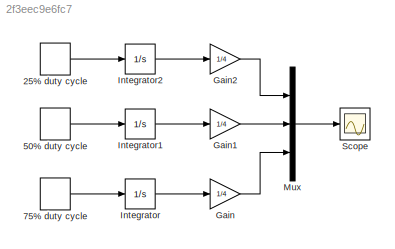
MODEL slx_2f3eec9e6fc7
KIND model
CONFIG AbsTol = auto
CONFIG EnableMultiTasking = off
CONFIG FixedStep = auto
CONFIG MaxStep = auto
CONFIG MinStep = auto
CONFIG RelTol = 1e-3
CONFIG SampleTimeConstraint = Unconstrained
CONFIG Solver = VariableStepAuto
CONFIG SolverName = VariableStepAuto
CONFIG StartTime = 0.0
CONFIG StopTime = 4.0
BLOCK [DiscretePulseGenerator] 25% duty cycle
  Amplitude = 4
  Period = 4
  Ports = [0, 1]
  PulseType = Time based
  PulseWidth = 25
BLOCK [DiscretePulseGenerator] 50% duty cycle
  Amplitude = 4
  Period = 4
  Ports = [0, 1]
  PulseType = Time based
  PulseWidth = 50
BLOCK [DiscretePulseGenerator] 75% duty cycle
  Amplitude = 4
  Period = 4
  Ports = [0, 1]
  PulseType = Time based
  PulseWidth = 75
BLOCK [Gain] Gain
  Gain = 1/4
  OutDataTypeStr = Inherit: Inherit via internal rule
  ParamDataTypeStr = Inherit: Inherit via internal rule
  SaturateOnIntegerOverflow = off
BLOCK [Gain] Gain1
  Gain = 1/4
  OutDataTypeStr = Inherit: Inherit via internal rule
  ParamDataTypeStr = Inherit: Inherit via internal rule
  SaturateOnIntegerOverflow = off
BLOCK [Gain] Gain2
  Gain = 1/4
  OutDataTypeStr = Inherit: Inherit via internal rule
  ParamDataTypeStr = Inherit: Inherit via internal rule
  SaturateOnIntegerOverflow = off
BLOCK [Integrator] Integrator
  Ports = [1, 1]
BLOCK [Integrator] Integrator1
  Ports = [1, 1]
BLOCK [Integrator] Integrator2
  Ports = [1, 1]
BLOCK [Mux] Mux
  DisplayOption = bar
  Inputs = 3
  Ports = [3, 1]
BLOCK [Scope] Scope
  NumInputPorts = 1
  Ports = [1]
  ScopeSpecificationString = Simulink.scopes.TimeScopeBlockCfg('CurrentConfiguration', extmgr.ConfigurationSet(extmgr.Configuration('Core','General UI',true),extmgr.Configuration('Core','Source UI',true),extmgr.Configuration('Sources','WiredSimulink',true),extmgr.Configuration('Visuals','Time Domain',true,'SerializedDisplays',{struct('MinYLimReal','-0.375','MaxYLimReal','3.375','YLabelReal','','MinYLimMag','0.00000','MaxYLimM...<+1328ch>
LINE 25% duty cycle:1 -> Integrator2:1
LINE 50% duty cycle:1 -> Integrator1:1
LINE 75% duty cycle:1 -> Integrator:1
LINE Gain1:1 -> Mux:2
LINE Gain2:1 -> Mux:1
LINE Gain:1 -> Mux:3
LINE Integrator1:1 -> Gain1:1
LINE Integrator2:1 -> Gain2:1
LINE Integrator:1 -> Gain:1
LINE Mux:1 -> Scope:1
